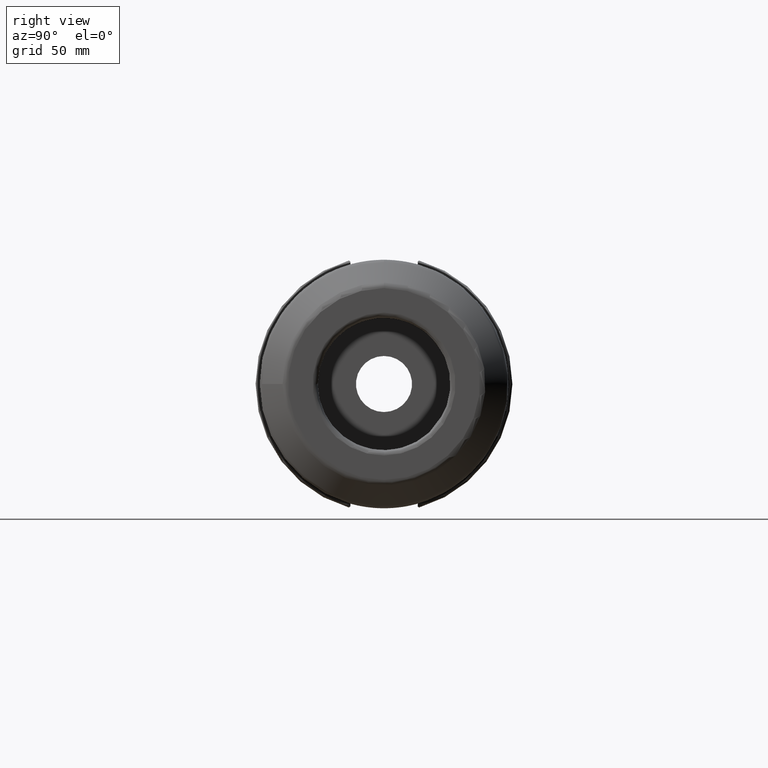
[diagram: clean part render]
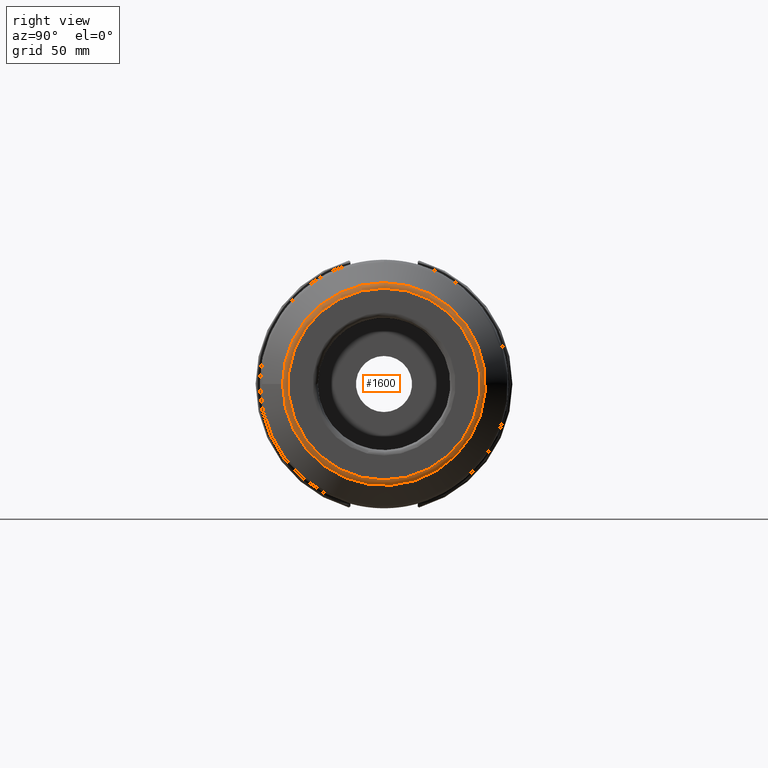
[diagram: same view with one face highlighted and labeled with its STEP entity id]
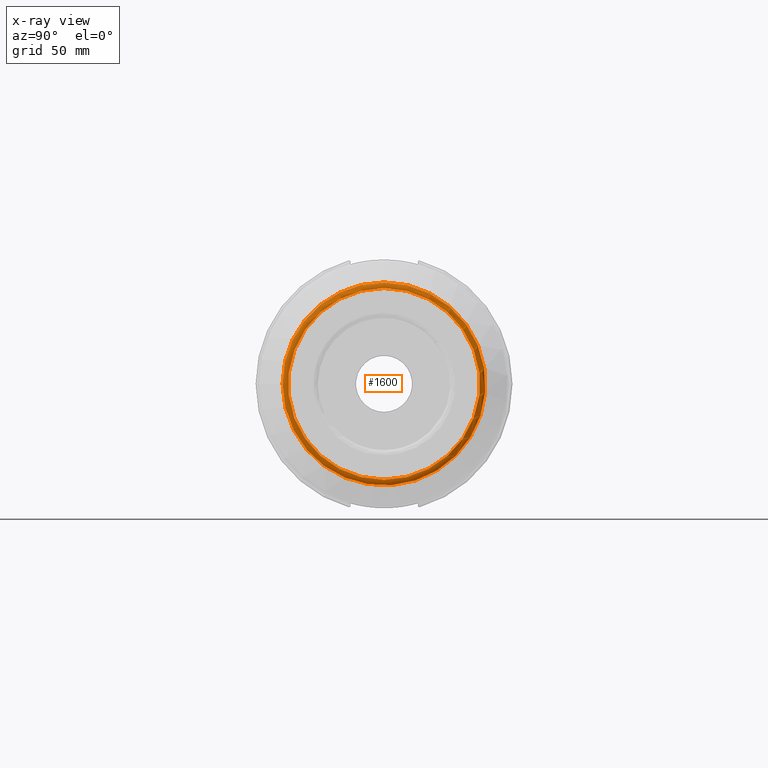
[diagram: x-ray of the same camera — body ghosted, the highlighted face saturated]
A machine part, right view. The second image highlights one B-rep face of the part: STEP entity #1600.
The next image is the same camera in x-ray: the body ghosted, the highlighted face saturated — about 0% of this face is hidden behind the body in this view.
In plain terms, the highlighted toroidal blend (fillet) surface has major radius 36.7574 mm and minor (blend) radius 3 mm.
Its self-contained STEP definition (entity closure, byte-faithful):
#321=FACE_OUTER_BOUND('',#414,.T.);
#414=EDGE_LOOP('',(#1109,#1110,#1111,#1112,#1113));
#528=CIRCLE('',#1722,36.7573593128807);
#529=CIRCLE('',#1723,3.);
#530=CIRCLE('',#1724,38.8786796564404);
#531=CIRCLE('',#1725,38.8786796564404);
#682=VERTEX_POINT('',#2550);
#683=VERTEX_POINT('',#2552);
#684=VERTEX_POINT('',#2554);
#854=EDGE_CURVE('',#682,#682,#528,.T.);
#855=EDGE_CURVE('',#682,#683,#529,.T.);
#856=EDGE_CURVE('',#683,#684,#530,.T.);
#857=EDGE_CURVE('',#684,#683,#531,.T.);
#1109=ORIENTED_EDGE('',*,*,#854,.T.);
#1110=ORIENTED_EDGE('',*,*,#855,.T.);
#1111=ORIENTED_EDGE('',*,*,#856,.T.);
#1112=ORIENTED_EDGE('',*,*,#857,.T.);
#1113=ORIENTED_EDGE('',*,*,#855,.F.);
#1587=TOROIDAL_SURFACE('',#1721,36.7573593128807,3.);
#1600=ADVANCED_FACE('',(#321),#1587,.T.);
#1721=AXIS2_PLACEMENT_3D('',#2549,#1920,#1921);
#1722=AXIS2_PLACEMENT_3D('',#2551,#1922,#1923);
#1723=AXIS2_PLACEMENT_3D('',#2553,#1924,#1925);
#1724=AXIS2_PLACEMENT_3D('',#2555,#1926,#1927);
#1725=AXIS2_PLACEMENT_3D('',#2556,#1928,#1929);
#1920=DIRECTION('center_axis',(1.,0.,0.));
#1921=DIRECTION('ref_axis',(0.,0.,-1.));
#1922=DIRECTION('center_axis',(-1.,0.,0.));
#1923=DIRECTION('ref_axis',(0.,-1.,1.83697019872103E-16));
#1924=DIRECTION('center_axis',(0.,-1.,-1.22464679914735E-16));
#1925=DIRECTION('ref_axis',(0.,-1.22464679914735E-16,1.));
#1926=DIRECTION('center_axis',(1.,0.,0.));
#1927=DIRECTION('ref_axis',(0.,-1.,3.06161699786838E-17));
#1928=DIRECTION('center_axis',(1.,0.,0.));
#1929=DIRECTION('ref_axis',(0.,-1.,3.06161699786838E-17));
#2549=CARTESIAN_POINT('Origin',(140.,0.,0.));
#2550=CARTESIAN_POINT('',(143.,-4.50147824276286E-15,36.7573593128807));
#2551=CARTESIAN_POINT('Origin',(143.,0.,0.));
#2552=CARTESIAN_POINT('',(142.12132034356,-4.7612650596335E-15,38.8786796564404));
#2553=CARTESIAN_POINT('Origin',(140.,-4.50147824276286E-15,36.7573593128807));
#2554=CARTESIAN_POINT('',(142.12132034356,-38.8786796564404,-4.7612650596335E-15));
#2555=CARTESIAN_POINT('Origin',(142.12132034356,0.,-5.95158132454188E-15));
#2556=CARTESIAN_POINT('Origin',(142.12132034356,0.,-5.95158132454188E-15));